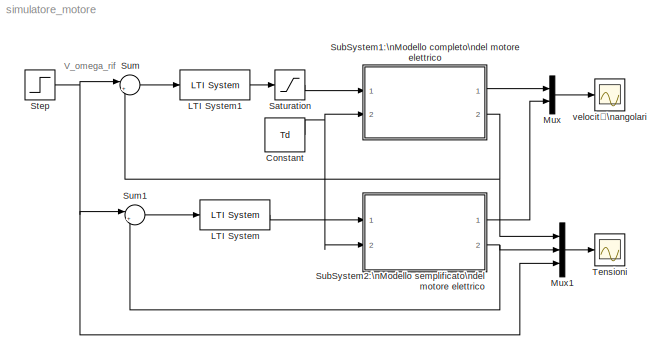
MODEL simulatore_motore
KIND model
BLOCK [Constant] Constant
  Value = Td
BLOCK [Reference] LTI System  REF=cstblocks/LTI System
  FunctionWithSeparateData = off
  IC = []
  Ports = [1, 1]
  RTWMemSecDataConstants = Inherit from model
  RTWMemSecDataInternal = Inherit from model
  RTWMemSecDataParameters = Inherit from model
  RTWMemSecFuncExecute = Inherit from model
  RTWMemSecFuncInitTerm = Inherit from model
  ShowPortLabels = FromPortIcon
  SourceBlock = cstblocks/LTI System
  SourceType = LTI Block
  SystemSampleTime = -1
  sys = Cd
BLOCK [Reference] LTI System1  REF=cstblocks/LTI System
  FunctionWithSeparateData = off
  IC = []
  Ports = [1, 1]
  RTWMemSecDataConstants = Inherit from model
  RTWMemSecDataInternal = Inherit from model
  RTWMemSecDataParameters = Inherit from model
  RTWMemSecFuncExecute = Inherit from model
  RTWMemSecFuncInitTerm = Inherit from model
  ShowPortLabels = FromPortIcon
  SourceBlock = cstblocks/LTI System
  SourceType = LTI Block
  SystemSampleTime = -1
  sys = Cd
BLOCK [Mux] Mux
  DisplayOption = bar
  Inputs = 2
  Ports = [2, 1]
BLOCK [Mux] Mux1
  DisplayOption = bar
  Inputs = 3
  Ports = [3, 1]
BLOCK [Saturate] Saturation
  LowerLimit = -5
  UpperLimit = 5
BLOCK [Step] Step
  SampleTime = 0
  Time = 0
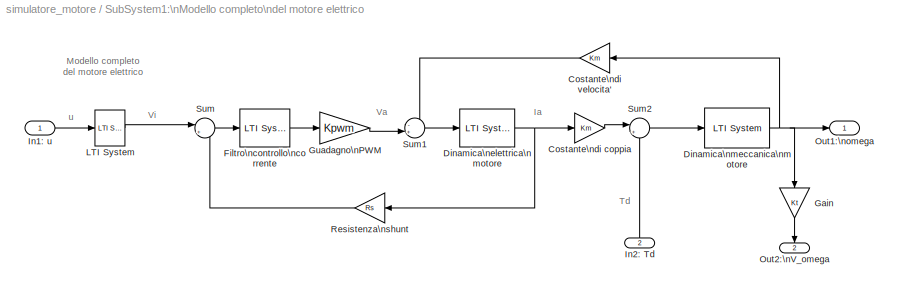
BLOCK [SubSystem] SubSystem1:\nModello completo\ndel motore elettrico
  FunctionWithSeparateData = off
  MinAlgLoopOccurrences = off
  Ports = [2, 2]
  RTWSystemCode = Auto
BLOCK [Gain] SubSystem1:\nModello completo\ndel motore elettrico/Costante\ndi coppia
  Gain = Km
BLOCK [Gain] SubSystem1:\nModello completo\ndel motore elettrico/Costante\ndi velocita'
  Gain = Km
BLOCK [Reference] SubSystem1:\nModello completo\ndel motore elettrico/Dinamica\nelettrica\nmotore  REF=cstblocks/LTI System
  FunctionWithSeparateData = off
  IC = []
  Ports = [1, 1]
  RTWMemSecDataConstants = Inherit from model
  RTWMemSecDataInternal = Inherit from model
  RTWMemSecDataParameters = Inherit from model
  RTWMemSecFuncExecute = Inherit from model
  RTWMemSecFuncInitTerm = Inherit from model
  ShowPortLabels = FromPortIcon
  SourceBlock = cstblocks/LTI System
  SourceType = LTI Block
  SystemSampleTime = -1
  sys = 1/(Ra+s*La)
BLOCK [Reference] SubSystem1:\nModello completo\ndel motore elettrico/Dinamica\nmeccanica\nmotore  REF=cstblocks/LTI System
  FunctionWithSeparateData = off
  IC = []
  Ports = [1, 1]
  RTWMemSecDataConstants = Inherit from model
  RTWMemSecDataInternal = Inherit from model
  RTWMemSecDataParameters = Inherit from model
  RTWMemSecFuncExecute = Inherit from model
  RTWMemSecFuncInitTerm = Inherit from model
  ShowPortLabels = FromPortIcon
  SourceBlock = cstblocks/LTI System
  SourceType = LTI Block
  SystemSampleTime = -1
  sys = 1/(Beta+s*J)
BLOCK [Reference] SubSystem1:\nModello completo\ndel motore elettrico/Filtro\ncontrollo\ncorrente  REF=cstblocks/LTI System
  FunctionWithSeparateData = off
  IC = []
  Ports = [1, 1]
  RTWMemSecDataConstants = Inherit from model
  RTWMemSecDataInternal = Inherit from model
  RTWMemSecDataParameters = Inherit from model
  RTWMemSecFuncExecute = Inherit from model
  RTWMemSecFuncInitTerm = Inherit from model
  ShowPortLabels = FromPortIcon
  SourceBlock = cstblocks/LTI System
  SourceType = LTI Block
  SystemSampleTime = -1
  sys = 1/(tau_a*s)
BLOCK [Gain] SubSystem1:\nModello completo\ndel motore elettrico/Gain
  Gain = Kt
BLOCK [Gain] SubSystem1:\nModello completo\ndel motore elettrico/Guadagno\nPWM
  Gain = Kpwm
BLOCK [Inport] SubSystem1:\nModello completo\ndel motore elettrico/In1: u
  IconDisplay = Port number
BLOCK [Inport] SubSystem1:\nModello completo\ndel motore elettrico/In2: Td
  IconDisplay = Port number
  Port = 2
BLOCK [Reference] SubSystem1:\nModello completo\ndel motore elettrico/LTI System  REF=cstblocks/LTI System
  FunctionWithSeparateData = off
  IC = []
  Ports = [1, 1]
  RTWMemSecDataConstants = Inherit from model
  RTWMemSecDataInternal = Inherit from model
  RTWMemSecDataParameters = Inherit from model
  RTWMemSecFuncExecute = Inherit from model
  RTWMemSecFuncInitTerm = Inherit from model
  ShowPortLabels = FromPortIcon
  SourceBlock = cstblocks/LTI System
  SourceType = LTI Block
  SystemSampleTime = -1
  sys = 1/s
BLOCK [Outport] SubSystem1:\nModello completo\ndel motore elettrico/Out1:\nomega
  IconDisplay = Port number
BLOCK [Outport] SubSystem1:\nModello completo\ndel motore elettrico/Out2:\nV_omega
  IconDisplay = Port number
  Port = 2
BLOCK [Gain] SubSystem1:\nModello completo\ndel motore elettrico/Resistenza\nshunt
  Gain = Rs
BLOCK [Sum] SubSystem1:\nModello completo\ndel motore elettrico/Sum
  IconShape = round
  Inputs = |+-
  Ports = [2, 1]
BLOCK [Sum] SubSystem1:\nModello completo\ndel motore elettrico/Sum1
  IconShape = round
  Inputs = -+|
  Ports = [2, 1]
BLOCK [Sum] SubSystem1:\nModello completo\ndel motore elettrico/Sum2
  IconShape = round
  Inputs = |+-
  Ports = [2, 1]
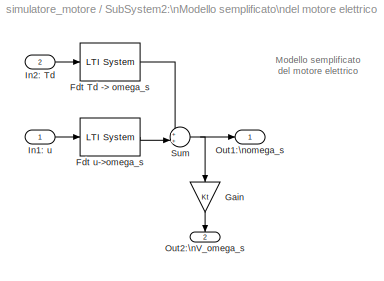
BLOCK [SubSystem] SubSystem2:\nModello semplificato\ndel motore elettrico
  FunctionWithSeparateData = off
  MinAlgLoopOccurrences = off
  Ports = [2, 2]
  RTWSystemCode = Auto
BLOCK [Reference] SubSystem2:\nModello semplificato\ndel motore elettrico/Fdt Td -> omega_s  REF=cstblocks/LTI System
  FunctionWithSeparateData = off
  IC = []
  Ports = [1, 1]
  RTWMemSecDataConstants = Inherit from model
  RTWMemSecDataInternal = Inherit from model
  RTWMemSecDataParameters = Inherit from model
  RTWMemSecFuncExecute = Inherit from model
  RTWMemSecFuncInitTerm = Inherit from model
  ShowPortLabels = FromPortIcon
  SourceBlock = cstblocks/LTI System
  SourceType = LTI Block
  SystemSampleTime = -1
  sys = Fd
BLOCK [Reference] SubSystem2:\nModello semplificato\ndel motore elettrico/Fdt u->omega_s  REF=cstblocks/LTI System
  FunctionWithSeparateData = off
  IC = []
  Ports = [1, 1]
  RTWMemSecDataConstants = Inherit from model
  RTWMemSecDataInternal = Inherit from model
  RTWMemSecDataParameters = Inherit from model
  RTWMemSecFuncExecute = Inherit from model
  RTWMemSecFuncInitTerm = Inherit from model
  ShowPortLabels = FromPortIcon
  SourceBlock = cstblocks/LTI System
  SourceType = LTI Block
  SystemSampleTime = -1
  sys = F
BLOCK [Gain] SubSystem2:\nModello semplificato\ndel motore elettrico/Gain
  Gain = Kt
BLOCK [Inport] SubSystem2:\nModello semplificato\ndel motore elettrico/In1: u
  IconDisplay = Port number
BLOCK [Inport] SubSystem2:\nModello semplificato\ndel motore elettrico/In2: Td
  IconDisplay = Port number
  Port = 2
BLOCK [Outport] SubSystem2:\nModello semplificato\ndel motore elettrico/Out1:\nomega_s
  IconDisplay = Port number
BLOCK [Outport] SubSystem2:\nModello semplificato\ndel motore elettrico/Out2:\nV_omega_s
  IconDisplay = Port number
  Port = 2
BLOCK [Sum] SubSystem2:\nModello semplificato\ndel motore elettrico/Sum
  IconShape = round
  Inputs = ++|
  Ports = [2, 1]
BLOCK [Sum] Sum
  IconShape = round
  Inputs = |+-
  Ports = [2, 1]
BLOCK [Sum] Sum1
  IconShape = round
  Inputs = |+-
  Ports = [2, 1]
BLOCK [Scope] Tensioni
  DataFormat = StructureWithTime
  Floating = off
  LimitDataPoints = off
  NumInputPorts = 1
  Ports = [1]
  SampleTime = 0
  YMax = 1
  YMin = -0.05
BLOCK [Scope] velocità\nangolari
  DataFormat = StructureWithTime
  Floating = off
  LimitDataPoints = off
  NumInputPorts = 1
  Ports = [1]
  SampleTime = 0
  YMax = 50
  YMin = -2.5
ANNOTATION (root): V_omega_rif
ANNOTATION SubSystem1:\nModello completo\ndel motore elettrico: Ia
ANNOTATION SubSystem1:\nModello completo\ndel motore elettrico: Modello completo\ndel motore elettrico
ANNOTATION SubSystem1:\nModello completo\ndel motore elettrico: Td
ANNOTATION SubSystem1:\nModello completo\ndel motore elettrico: Va
ANNOTATION SubSystem1:\nModello completo\ndel motore elettrico: Vi
ANNOTATION SubSystem1:\nModello completo\ndel motore elettrico: u
ANNOTATION SubSystem2:\nModello semplificato\ndel motore elettrico: Modello semplificato\ndel motore elettrico
NET Constant:1 -> SubSystem1:\nModello completo\ndel motore elettrico:2, SubSystem2:\nModello semplificato\ndel motore elettrico:2
LINE LTI System1:1 -> Saturation:1
LINE LTI System:1 -> SubSystem2:\nModello semplificato\ndel motore elettrico:1
LINE Mux1:1 -> Tensioni:1
LINE Mux:1 -> velocità\nangolari:1
LINE Saturation:1 -> SubSystem1:\nModello completo\ndel motore elettrico:1
NET Step:1 -> Mux1:3, Sum1:1, Sum:1
LINE SubSystem1:\nModello completo\ndel motore elettrico/Costante\ndi coppia:1 -> SubSystem1:\nModello completo\ndel motore elettrico/Sum2:1
LINE SubSystem1:\nModello completo\ndel motore elettrico/Costante\ndi velocita':1 -> SubSystem1:\nModello completo\ndel motore elettrico/Sum1:1
NET SubSystem1:\nModello completo\ndel motore elettrico/Dinamica\nelettrica\nmotore:1 -> SubSystem1:\nModello completo\ndel motore elettrico/Costante\ndi coppia:1, SubSystem1:\nModello completo\ndel motore elettrico/Resistenza\nshunt:1
NET SubSystem1:\nModello completo\ndel motore elettrico/Dinamica\nmeccanica\nmotore:1 -> SubSystem1:\nModello completo\ndel motore elettrico/Costante\ndi velocita':1, SubSystem1:\nModello completo\ndel motore elettrico/Gain:1, SubSystem1:\nModello completo\ndel motore elettrico/Out1:\nomega:1
LINE SubSystem1:\nModello completo\ndel motore elettrico/Filtro\ncontrollo\ncorrente:1 -> SubSystem1:\nModello completo\ndel motore elettrico/Guadagno\nPWM:1
LINE SubSystem1:\nModello completo\ndel motore elettrico/Gain:1 -> SubSystem1:\nModello completo\ndel motore elettrico/Out2:\nV_omega:1
LINE SubSystem1:\nModello completo\ndel motore elettrico/Guadagno\nPWM:1 -> SubSystem1:\nModello completo\ndel motore elettrico/Sum1:2
LINE SubSystem1:\nModello completo\ndel motore elettrico/In1: u:1 -> SubSystem1:\nModello completo\ndel motore elettrico/LTI System:1
LINE SubSystem1:\nModello completo\ndel motore elettrico/In2: Td:1 -> SubSystem1:\nModello completo\ndel motore elettrico/Sum2:2
LINE SubSystem1:\nModello completo\ndel motore elettrico/LTI System:1 -> SubSystem1:\nModello completo\ndel motore elettrico/Sum:1
LINE SubSystem1:\nModello completo\ndel motore elettrico/Resistenza\nshunt:1 -> SubSystem1:\nModello completo\ndel motore elettrico/Sum:2
LINE SubSystem1:\nModello completo\ndel motore elettrico/Sum1:1 -> SubSystem1:\nModello completo\ndel motore elettrico/Dinamica\nelettrica\nmotore:1
LINE SubSystem1:\nModello completo\ndel motore elettrico/Sum2:1 -> SubSystem1:\nModello completo\ndel motore elettrico/Dinamica\nmeccanica\nmotore:1
LINE SubSystem1:\nModello completo\ndel motore elettrico/Sum:1 -> SubSystem1:\nModello completo\ndel motore elettrico/Filtro\ncontrollo\ncorrente:1
LINE SubSystem1:\nModello completo\ndel motore elettrico:1 -> Mux:1
NET SubSystem1:\nModello completo\ndel motore elettrico:2 -> Mux1:1, Sum:2
LINE SubSystem2:\nModello semplificato\ndel motore elettrico/Fdt Td -> omega_s:1 -> SubSystem2:\nModello semplificato\ndel motore elettrico/Sum:1
LINE SubSystem2:\nModello semplificato\ndel motore elettrico/Fdt u->omega_s:1 -> SubSystem2:\nModello semplificato\ndel motore elettrico/Sum:2
LINE SubSystem2:\nModello semplificato\ndel motore elettrico/Gain:1 -> SubSystem2:\nModello semplificato\ndel motore elettrico/Out2:\nV_omega_s:1
LINE SubSystem2:\nModello semplificato\ndel motore elettrico/In1: u:1 -> SubSystem2:\nModello semplificato\ndel motore elettrico/Fdt u->omega_s:1
LINE SubSystem2:\nModello semplificato\ndel motore elettrico/In2: Td:1 -> SubSystem2:\nModello semplificato\ndel motore elettrico/Fdt Td -> omega_s:1
NET SubSystem2:\nModello semplificato\ndel motore elettrico/Sum:1 -> SubSystem2:\nModello semplificato\ndel motore elettrico/Gain:1, SubSystem2:\nModello semplificato\ndel motore elettrico/Out1:\nomega_s:1
LINE SubSystem2:\nModello semplificato\ndel motore elettrico:1 -> Mux:2
NET SubSystem2:\nModello semplificato\ndel motore elettrico:2 -> Mux1:2, Sum1:2
LINE Sum1:1 -> LTI System:1
LINE Sum:1 -> LTI System1:1
note: NET lines group one-source signal fan-out (src -> all destinations, sorted); 1:1 wires keep LINE
